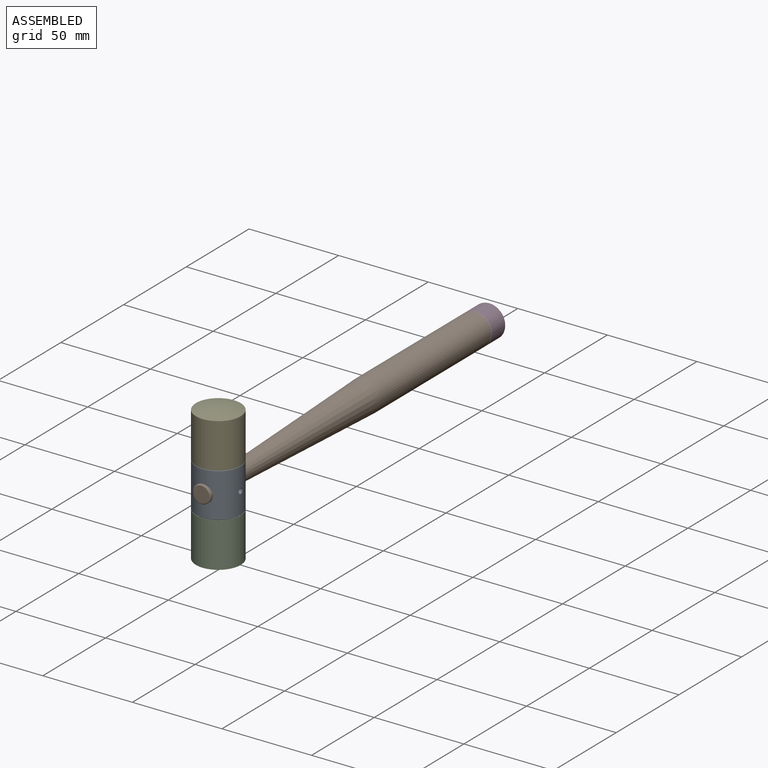
[diagram: assembled view]
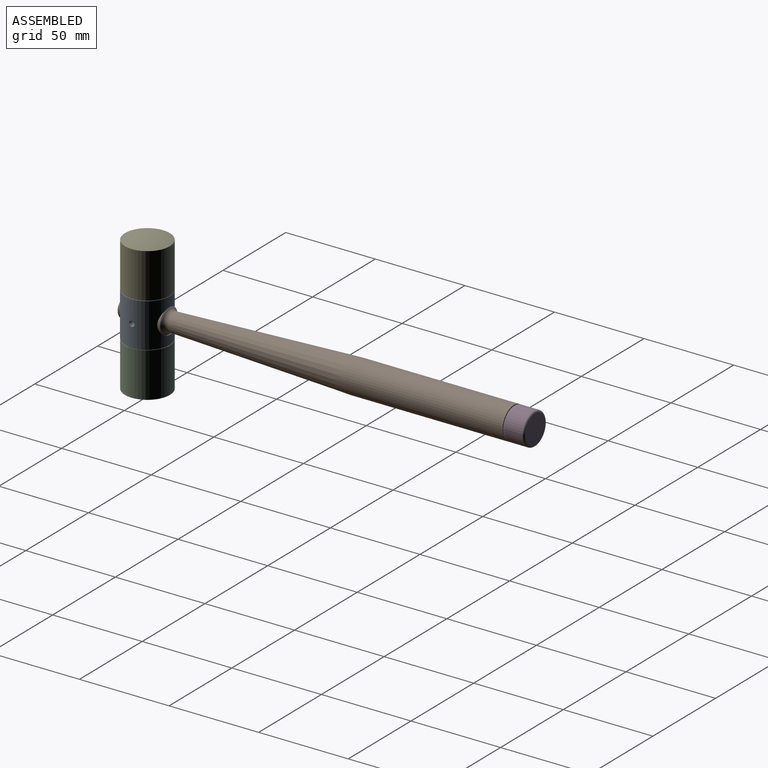
[diagram: assembled view, second angle]
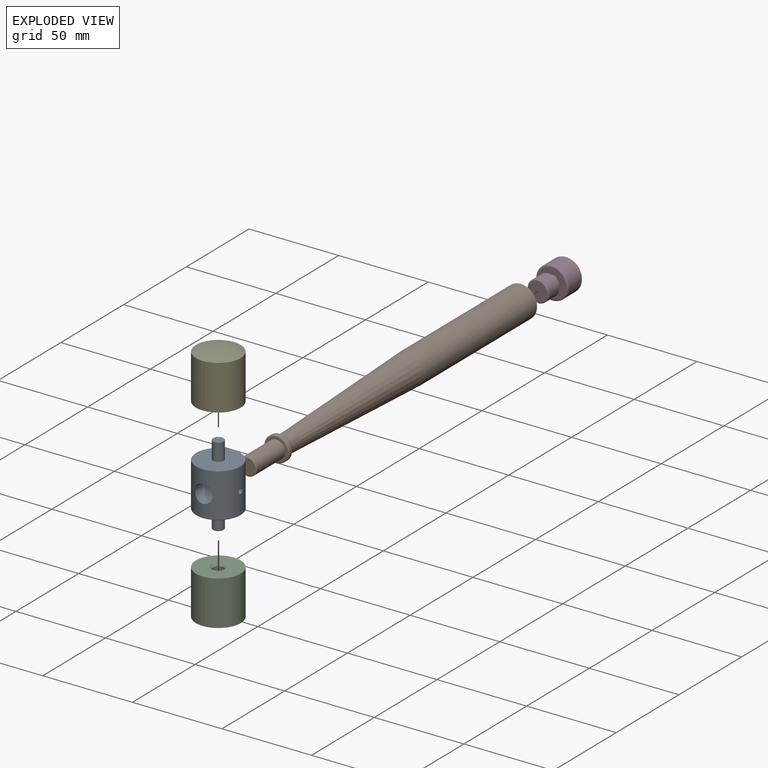
[diagram: exploded view]
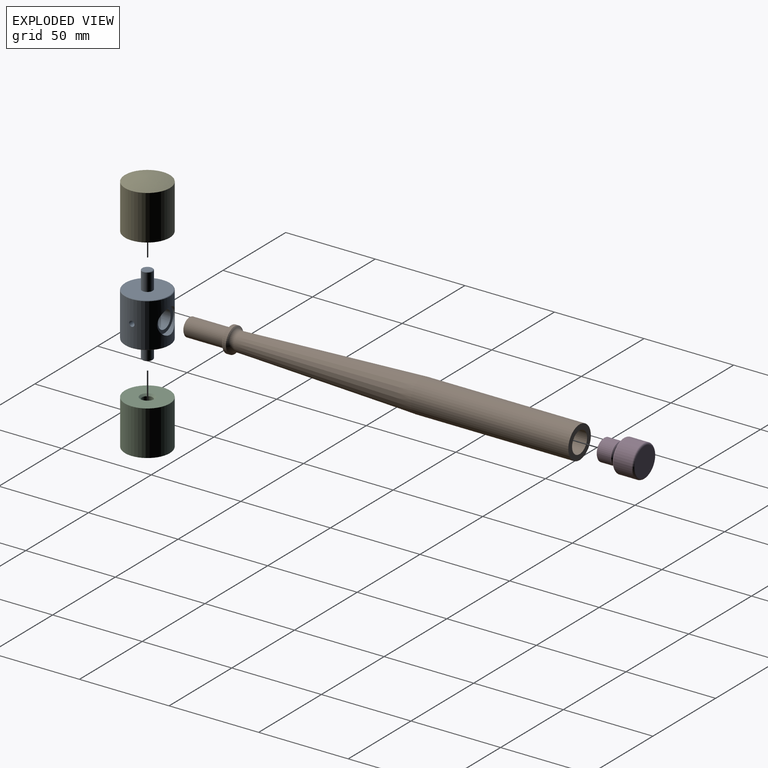
[diagram: exploded view, second angle]
ASSEMBLY  parts=5 mates=4
PART A: 16 faces, bbox 25x25x45 mm
  f0: cylinder r=12.5mm len=25mm, axis (0,0,1), area 1669.1mm2, adj f1,f2,f3,f10,f11,f14
  f1: cylinder r=5mm len=22mm, axis (-1,0,0), area 660.6mm2, adj f0,f2,f3,f15
  f2: cylinder r=1.5mm len=7.73mm, axis (0,-1,0), area 71.3mm2, adj f0,f1
  f3: cylinder r=1.5mm len=7.73mm, axis (0,-1,0), area 71.3mm2, adj f0,f1
  f4: plane 5.5x5.5mm, normal (0,0,1), area 23.8mm2, adj f13
  f5: cylinder r=3mm len=9.75mm, axis (0,0,1), area 183.8mm2, adj f6,f13
  f6: plane 24.5x24.5mm, normal (0,0,1), area 443.2mm2, adj f5,f11
  f7: plane 24.5x24.5mm, normal (0,0,-1), area 443.2mm2, adj f8,f10
  f8: cylinder r=3mm len=9.75mm, axis (0,0,1), area 183.8mm2, adj f7,f12
  f9: plane 5.5x5.5mm, normal (0,0,-1), area 23.8mm2, adj f12
  f10: cone r=12.5mm half-angle=45deg, axis (0,0,1), area 27.5mm2, adj f0,f7
  f11: cone r=12.25mm half-angle=45deg, axis (0,0,-1), area 27.5mm2, adj f0,f6
  f12: cone r=3mm half-angle=45deg, axis (0,0,1), area 6.4mm2, adj f8,f9
  f13: cone r=2.75mm half-angle=45deg, axis (0,0,-1), area 6.4mm2, adj f4,f5
  f14: cylinder r=7mm len=14mm, axis (-1,0,0), area 85.9mm2, adj f0,f15
  f15: plane 14x14mm, normal (1,0,0), area 75.4mm2, adj f1,f14
PART B: 13 faces, bbox 18x218x18 mm
  f0: cylinder r=5mm len=22.5mm, axis (0,1,0), area 706.9mm2, adj f6,f11
  f1: plane 9x9mm, normal (0,-1,0), area 63.6mm2, adj f11
  f2: plane 18x18mm, normal (0,1,0), area 141.4mm2, adj f3,f7
  f3: cylinder r=9mm len=88mm, axis (0,1,0), area 4976.3mm2, adj f2,f4
  f4: cone r=5mm half-angle=2.2deg, axis (0,1,0), area 4493.3mm2, adj f3,f12
  f5: cylinder r=7mm len=14mm, axis (0,1,0), area 88mm2, adj f9,f10
  f6: plane 13x13mm, normal (0,-1,0), area 54.2mm2, adj f0,f9
  f7: cylinder r=6mm len=100mm, axis (0,1,0), area 3769.9mm2, adj f2,f8
  f8: plane 12x12mm, normal (0,1,0), area 113.1mm2, adj f7
  f9: cone r=7mm half-angle=45deg, axis (0,1,0), area 30mm2, adj f5,f6
  f10: cone r=6.5mm half-angle=45deg, axis (0,-1,0), area 30mm2, adj f5,f12
  f11: cone r=5mm half-angle=45deg, axis (0,1,0), area 21.1mm2, adj f0,f1
  f12: torus R=8.1mm, axis (0,-1,0), area 109.8mm2, adj f4,f10
PART C: 6 faces, bbox 25x27.2x25 mm
  f0: cylinder r=12.5mm len=25mm, axis (0,-1,0), area 1963.5mm2, adj f1,f2
  f1: plane 25x25mm, normal (0,-1,0), area 440.6mm2, adj f0,f5
  f2: revolved ~25x25mm, area 504.3mm2, adj f0
  f3: cylinder r=3mm len=14mm, axis (0,-1,0), area 263.9mm2, adj f4,f5
  f4: plane 6x6mm, normal (0,-1,0), area 28.3mm2, adj f3
  f5: cone r=3mm half-angle=45deg, axis (0,-1,0), area 31.1mm2, adj f1,f3
PART D: 11 faces, bbox 19.5x23x19.5 mm
  f0: plane 11x11mm, normal (0,-1,0), area 95mm2, adj f8
  f1: plane 16x16mm, normal (0,1,0), area 201.1mm2, adj f9
  f2: cylinder r=9mm len=18mm, axis (0,1,0), area 565.5mm2, adj f9,f10
  f3: plane 16x16mm, normal (0,-1,0), area 137.4mm2, adj f4,f10
  f4: cylinder r=4.5mm len=9mm, axis (0,1,0), area 56.5mm2, adj f3,f5
  f5: plane 11x11mm, normal (0,1,0), area 31.4mm2, adj f4,f7
  f6: cylinder r=6mm len=12mm, axis (0,1,0), area 301.6mm2, adj f7,f8
  f7: cone r=5.5mm half-angle=45deg, axis (0,-1,0), area 25.5mm2, adj f5,f6
  f8: cone r=6mm half-angle=45deg, axis (0,1,0), area 25.5mm2, adj f0,f6
  f9: torus R=8mm, axis (0,-1,0), area 85.2mm2, adj f1,f2
  f10: torus R=8mm, axis (0,1,0), area 85.2mm2, adj f2,f3
PART E: same geometry as C
PLACE A rot(axis=(0,0,1),90deg) t=(136.2,-161.77,-43.84)mm
PLACE B rot(axis=(0,1,0),90deg) t=(136.2,-66.27,-43.84)mm
PLACE C rot(axis=(0,-0.71,0.71),180deg) t=(136.2,-161.77,-56.15)mm
PLACE D t=(136.2,31.73,-43.84)mm
PLACE E rot(axis=(1,0,0),90deg) t=(136.2,-161.77,-31.15)mm
MATE fastened E.f0 <-> A.f0  axis (0,0,-1) through (136.2,-161.77,-31.15)mm
MATE fastened C.f0 <-> A.f0  axis (0,0,1) through (136.2,-161.77,-56.15)mm
MATE fastened B.f7 <-> D.f2  axis (0,1,0) through (136.2,42.73,-43.84)mm
MATE fastened B.f7 <-> A.f14  axis (0,-1,0) through (136.2,-152.27,-43.84)mm
